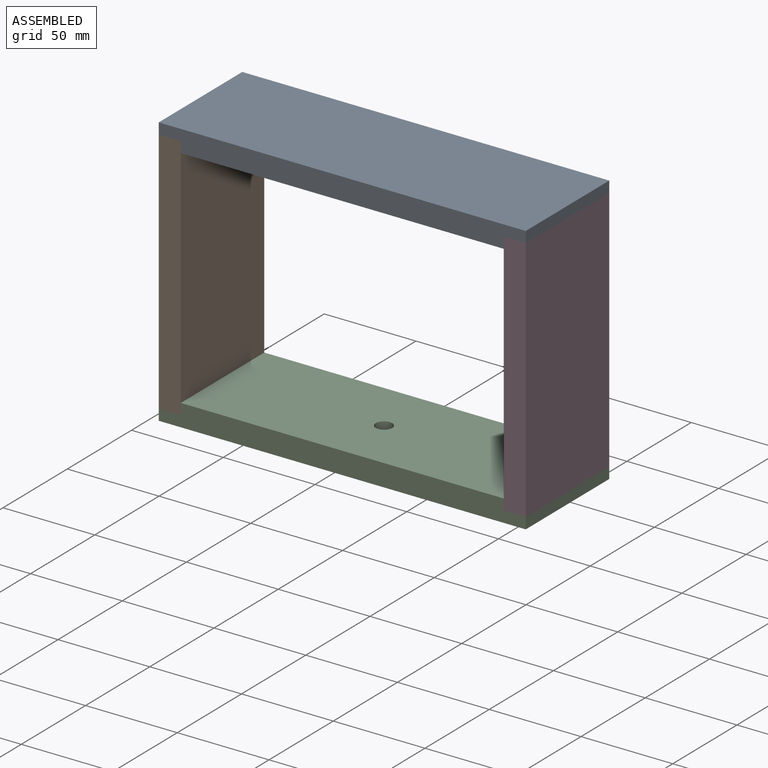
[diagram: assembled view]
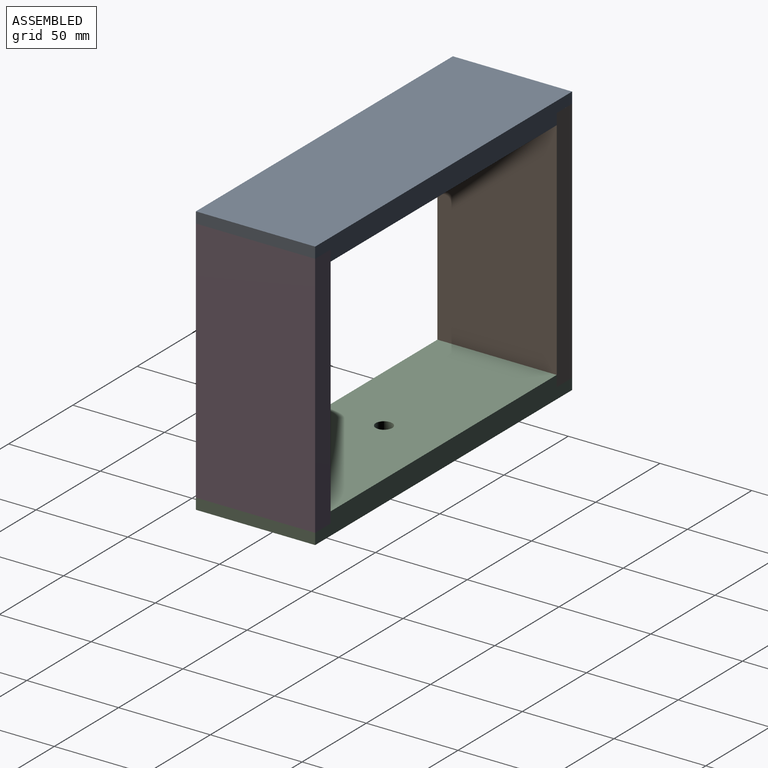
[diagram: assembled view, second angle]
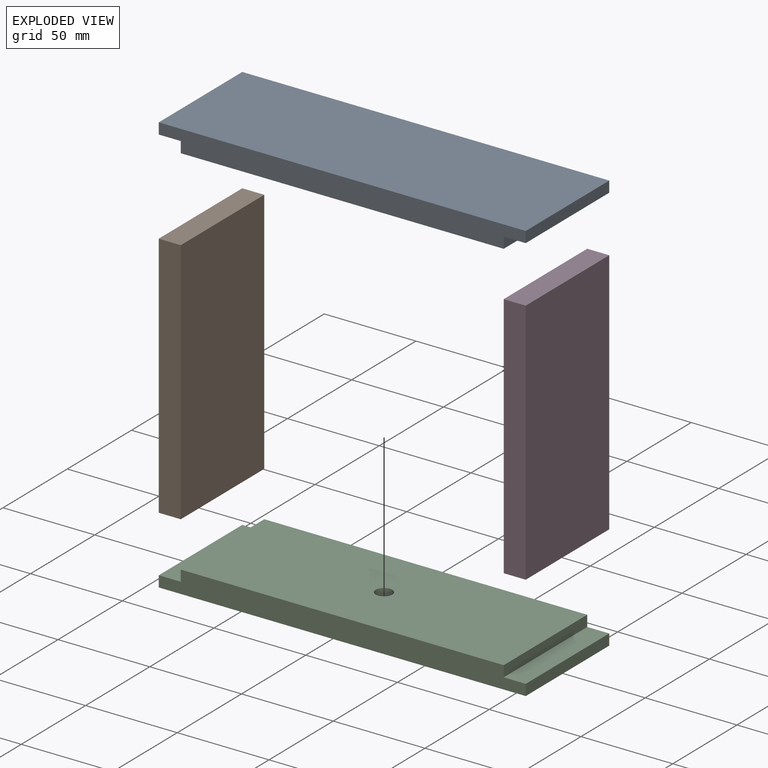
[diagram: exploded view]
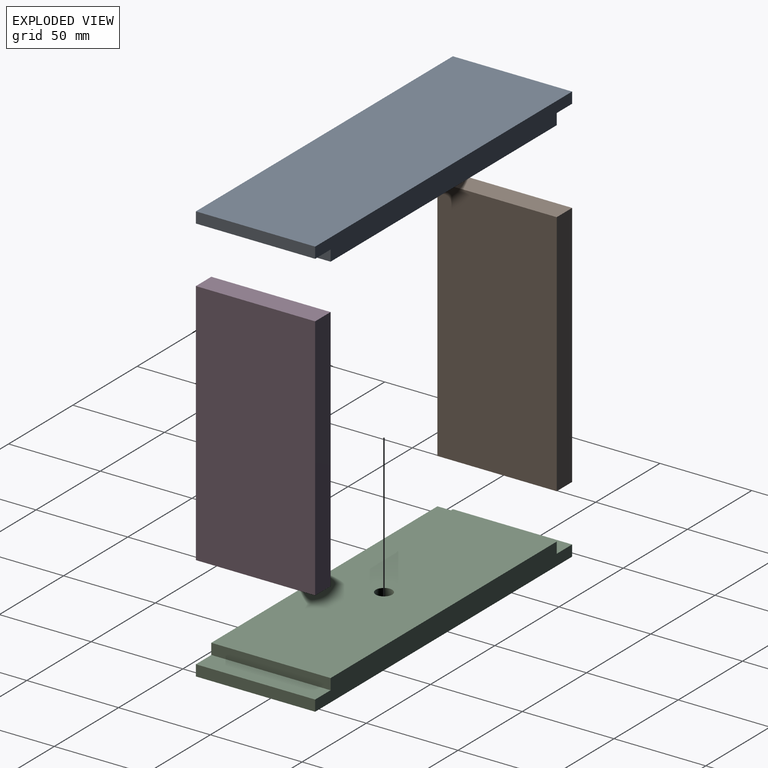
[diagram: exploded view, second angle]
ASSEMBLY  parts=4 mates=3
PART A: 10 faces, bbox 200x65x12 mm
  f0: plane 65x6mm, normal (-1,0,0), area 390mm2, adj f1,f3,f5,f9
  f1: plane 200x12mm, normal (0,-1,0), area 2256mm2, adj f0,f2,f4,f5,f6,f7,f8,f9
  f2: plane 65x6mm, normal (1,0,0), area 390mm2, adj f1,f3,f5,f7
  f3: plane 200x12mm, normal (0,1,0), area 2256mm2, adj f0,f2,f4,f5,f6,f7,f8,f9
  f4: plane 176x65mm, normal (0,0,1), area 11440mm2, adj f1,f3,f6,f8
  f5: plane 200x65mm, normal (0,0,-1), area 13000mm2, adj f0,f1,f2,f3
  f6: plane 65x6mm, normal (1,0,0), area 390mm2, adj f1,f3,f4,f7
  f7: plane 65x12mm, normal (0,0,1), area 780mm2, adj f1,f2,f3,f6
  f8: plane 65x6mm, normal (-1,0,0), area 390mm2, adj f1,f3,f4,f9
  f9: plane 65x12mm, normal (0,0,1), area 780mm2, adj f0,f1,f3,f8
PART B: 6 faces, bbox 12x65x135 mm
  f0: plane 65x12mm, normal (0,0,1), area 780mm2, adj f1,f3,f4,f5
  f1: plane 135x12mm, normal (0,-1,0), area 1620mm2, adj f0,f2,f4,f5
  f2: plane 65x12mm, normal (0,0,-1), area 780mm2, adj f1,f3,f4,f5
  f3: plane 135x12mm, normal (0,1,0), area 1620mm2, adj f0,f2,f4,f5
  f4: plane 135x65mm, normal (1,0,0), area 8775mm2, adj f0,f1,f2,f3
  f5: plane 135x65mm, normal (-1,0,0), area 8775mm2, adj f0,f1,f2,f3
PART C: 11 faces, bbox 200x65x12 mm
  f0: plane 65x6mm, normal (-1,0,0), area 390mm2, adj f1,f3,f5,f9
  f1: plane 200x12mm, normal (0,-1,0), area 2256mm2, adj f0,f2,f4,f5,f6,f7,f8,f9
  f2: plane 65x6mm, normal (1,0,0), area 390mm2, adj f1,f3,f5,f7
  f3: plane 200x12mm, normal (0,1,0), area 2256mm2, adj f0,f2,f4,f5,f6,f7,f8,f9
  f4: plane 176x65mm, normal (0,0,1), area 11376.4mm2, adj f1,f3,f6,f8,f10
  f5: plane 200x65mm, normal (0,0,-1), area 12936.4mm2, adj f0,f1,f2,f3,f10
  f6: plane 65x6mm, normal (1,0,0), area 390mm2, adj f1,f3,f4,f7
  f7: plane 65x12mm, normal (0,0,1), area 780mm2, adj f1,f2,f3,f6
  f8: plane 65x6mm, normal (-1,0,0), area 390mm2, adj f1,f3,f4,f9
  f9: plane 65x12mm, normal (0,0,1), area 780mm2, adj f0,f1,f3,f8
  f10: cylinder r=4.5mm len=12mm, axis (0,0,-1), area 339.3mm2, adj f4,f5
PART D: same geometry as B
PLACE A rot(axis=(-1,0,0),180deg) t=(69.17,-234.02,70.61)mm
PLACE B rot(axis=(0.97,-0.03,0.22),0deg) t=(9.99,-218.35,28.82)mm
PLACE C rot(axis=(0.97,-0.03,0.22),0deg) t=(69.17,-172.68,-76.39)mm
PLACE D rot(axis=(0.97,-0.03,0.22),0deg) t=(197.99,-218.35,28.82)mm
MATE fastened A.f7 <-> D.f0  axis (0,0,-1) through (203.99,-203.35,64.61)mm
MATE fastened A.f9 <-> B.f0  axis (0,0,-1) through (15.99,-203.35,64.61)mm
MATE fastened D.f2 <-> C.f7  axis (0,0,-1) through (203.99,-203.35,-70.39)mm
